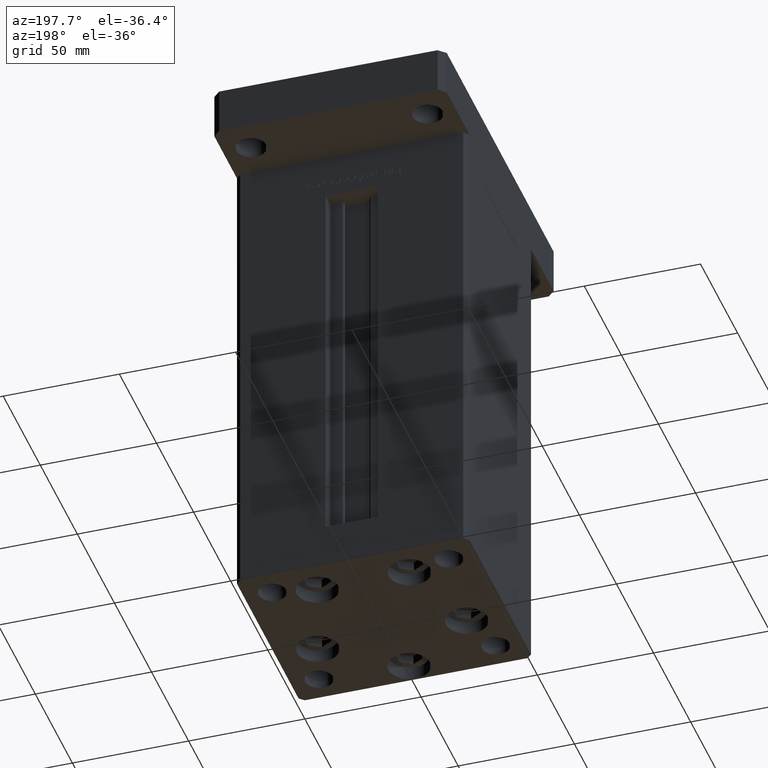
[diagram: clean part render]
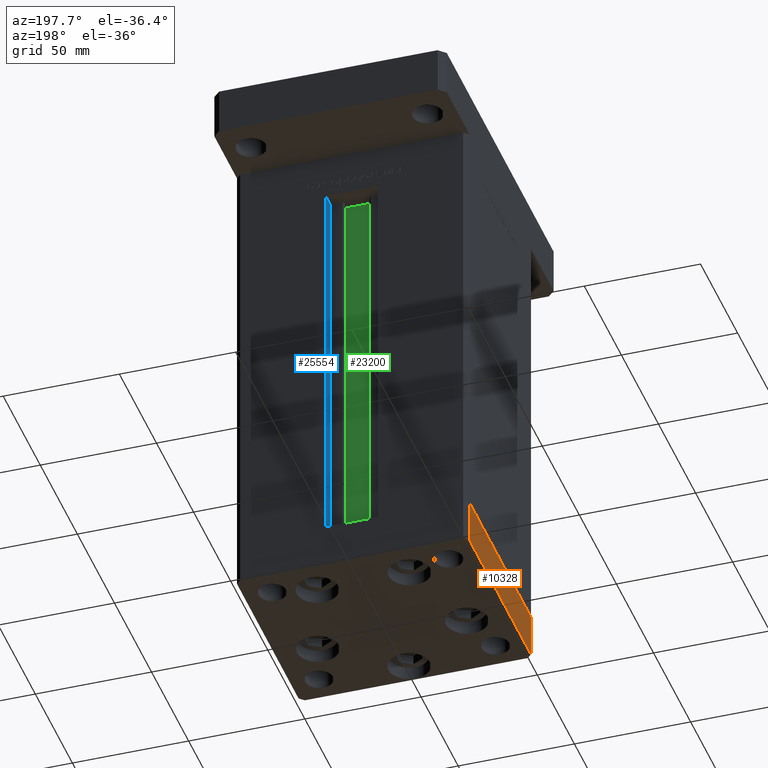
[diagram: same view with three faces highlighted in distinct colors, each labeled with its STEP entity id]
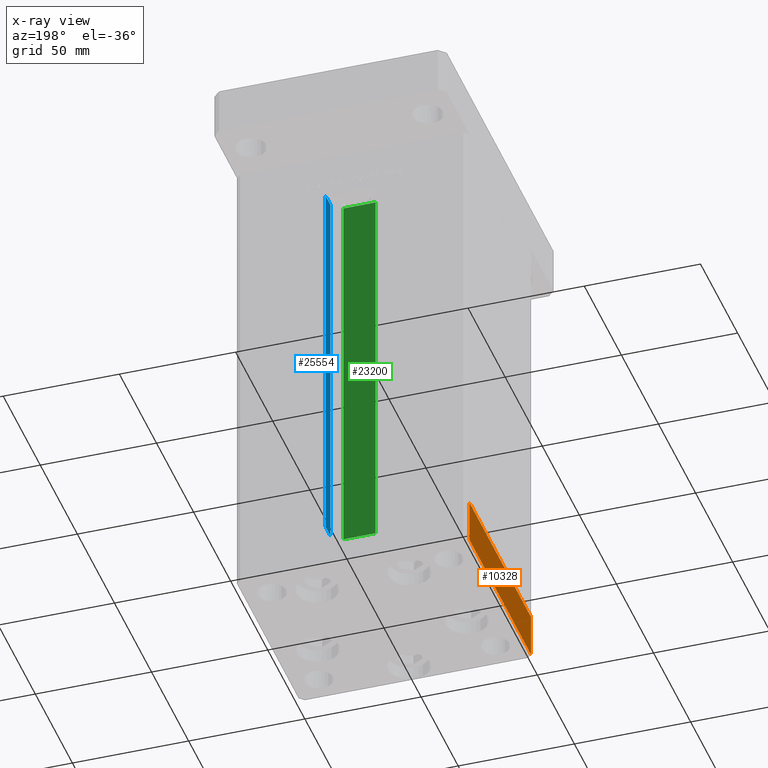
[diagram: x-ray of the same camera — body ghosted, the three highlighted faces saturated]
A machine part, auxiliary view with three faces highlighted in distinct colors.
The next image is the same camera in x-ray (body ghosted, the three faces saturated) — at least one of them is partly hidden behind the body in this view.
Their STEP definitions:

[orange] entity #10328 — the highlighted planar face has unit normal (-1, 0, 0).
#119 = CARTESIAN_POINT ( 'NONE',  ( 50.00000000000000000, -41.49999999999999289, -19.00000000000000000 ) ) ;
#218 = LINE ( 'NONE', #42746, #26651 ) ;
#459 = LINE ( 'NONE', #45190, #20736 ) ;
#4415 = EDGE_CURVE ( 'NONE', #19227, #9618, #50876, .T. ) ;
#6983 = AXIS2_PLACEMENT_3D ( 'NONE', #21808, #12274, #49621 ) ;
#8257 = VERTEX_POINT ( 'NONE', #10454 ) ;
#9618 = VERTEX_POINT ( 'NONE', #19326 ) ;
#10328 = ADVANCED_FACE ( 'NONE', ( #46067 ), #24822, .T. ) ;
#10425 = VECTOR ( 'NONE', #39532, 1000.000000000000000 ) ;
#10454 = CARTESIAN_POINT ( 'NONE',  ( 49.99999999999992184, 41.49999999999998579, -19.00000000000000000 ) ) ;
#10539 = ORIENTED_EDGE ( 'NONE', *, *, #50471, .T. ) ;
#12274 = DIRECTION ( 'NONE',  ( 1.000000000000000000, 1.003213576468515193E-15, -0.000000000000000000 ) ) ;
#13041 = DIRECTION ( 'NONE',  ( 0.000000000000000000, 0.000000000000000000, 1.000000000000000000 ) ) ;
#19227 = VERTEX_POINT ( 'NONE', #119 ) ;
#19326 = CARTESIAN_POINT ( 'NONE',  ( 50.00000000000000000, -41.49999999999999289, 0.000000000000000000 ) ) ;
#20736 = VECTOR ( 'NONE', #53647, 1000.000000000000000 ) ;
#21808 = CARTESIAN_POINT ( 'NONE',  ( 50.00000000000000000, -41.49999999999999289, -19.00000000000000000 ) ) ;
#22605 = ORIENTED_EDGE ( 'NONE', *, *, #37037, .T. ) ;
#22800 = DIRECTION ( 'NONE',  ( 0.000000000000000000, 0.000000000000000000, 1.000000000000000000 ) ) ;
#22933 = LINE ( 'NONE', #26998, #10425 ) ;
#24822 = PLANE ( 'NONE',  #6983 ) ;
#26195 = CARTESIAN_POINT ( 'NONE',  ( 49.99999999999992184, 41.49999999999998579, 0.000000000000000000 ) ) ;
#26651 = VECTOR ( 'NONE', #13041, 1000.000000000000000 ) ;
#26998 = CARTESIAN_POINT ( 'NONE',  ( 50.00000000000000000, -41.49999999999999289, -19.00000000000000000 ) ) ;
#34400 = ORIENTED_EDGE ( 'NONE', *, *, #46232, .F. ) ;
#37037 = EDGE_CURVE ( 'NONE', #8257, #43346, #218, .T. ) ;
#39532 = DIRECTION ( 'NONE',  ( -1.003213576468515193E-15, 1.000000000000000000, 0.000000000000000000 ) ) ;
#42746 = CARTESIAN_POINT ( 'NONE',  ( 49.99999999999992184, 41.49999999999998579, -19.00000000000000000 ) ) ;
#43346 = VERTEX_POINT ( 'NONE', #26195 ) ;
#45190 = CARTESIAN_POINT ( 'NONE',  ( 50.00000000000000000, -41.49999999999999289, 0.000000000000000000 ) ) ;
#45770 = ORIENTED_EDGE ( 'NONE', *, *, #4415, .F. ) ;
#46067 = FACE_OUTER_BOUND ( 'NONE', #46892, .T. ) ;
#46232 = EDGE_CURVE ( 'NONE', #9618, #43346, #459, .T. ) ;
#46892 = EDGE_LOOP ( 'NONE', ( #34400, #45770, #10539, #22605 ) ) ;
#49621 = DIRECTION ( 'NONE',  ( -1.003213576468515193E-15, 1.000000000000000000, 0.000000000000000000 ) ) ;
#50450 = VECTOR ( 'NONE', #22800, 1000.000000000000000 ) ;
#50471 = EDGE_CURVE ( 'NONE', #19227, #8257, #22933, .T. ) ;
#50876 = LINE ( 'NONE', #51138, #50450 ) ;
#51138 = CARTESIAN_POINT ( 'NONE',  ( 50.00000000000000000, -41.49999999999999289, -19.00000000000000000 ) ) ;
#53647 = DIRECTION ( 'NONE',  ( -1.003213576468515193E-15, 1.000000000000000000, 0.000000000000000000 ) ) ;

[blue] entity #25554 — the highlighted planar face has unit normal (1, 0, 0).
#4533 = EDGE_CURVE ( 'NONE', #39308, #18136, #15702, .T. ) ;
#6064 = DIRECTION ( 'NONE',  ( -0.000000000000000000, -1.000000000000000000, 0.000000000000000000 ) ) ;
#8175 = AXIS2_PLACEMENT_3D ( 'NONE', #14728, #35165, #18555 ) ;
#11924 = EDGE_CURVE ( 'NONE', #30798, #51657, #30537, .T. ) ;
#13964 = EDGE_CURVE ( 'NONE', #30798, #39308, #41784, .T. ) ;
#14193 = PLANE ( 'NONE',  #8175 ) ;
#14728 = CARTESIAN_POINT ( 'NONE',  ( 11.24999999999999822, 36.99999999999999289, 0.000000000000000000 ) ) ;
#15702 = LINE ( 'NONE', #31493, #17344 ) ;
#16820 = ORIENTED_EDGE ( 'NONE', *, *, #11924, .T. ) ;
#16988 = DIRECTION ( 'NONE',  ( 0.000000000000000000, 1.000000000000000000, 0.000000000000000000 ) ) ;
#17344 = VECTOR ( 'NONE', #44034, 1000.000000000000000 ) ;
#18136 = VERTEX_POINT ( 'NONE', #38204 ) ;
#18555 = DIRECTION ( 'NONE',  ( 0.000000000000000000, 0.000000000000000000, -1.000000000000000000 ) ) ;
#20581 = ORIENTED_EDGE ( 'NONE', *, *, #13964, .F. ) ;
#23120 = EDGE_LOOP ( 'NONE', ( #41557, #20581, #16820, #26120 ) ) ;
#25554 = ADVANCED_FACE ( 'NONE', ( #47709 ), #14193, .F. ) ;
#26120 = ORIENTED_EDGE ( 'NONE', *, *, #39128, .F. ) ;
#26762 = LINE ( 'NONE', #43399, #27618 ) ;
#27618 = VECTOR ( 'NONE', #6064, 1000.000000000000000 ) ;
#28214 = CARTESIAN_POINT ( 'NONE',  ( 11.24999999999999822, 36.99999999999999289, 0.000000000000000000 ) ) ;
#30537 = LINE ( 'NONE', #42540, #37470 ) ;
#30723 = CARTESIAN_POINT ( 'NONE',  ( 11.24999999999999822, 43.50000000000000000, 0.000000000000000000 ) ) ;
#30798 = VERTEX_POINT ( 'NONE', #28214 ) ;
#31493 = CARTESIAN_POINT ( 'NONE',  ( 11.24999999999999822, 43.50000000000000000, 0.000000000000000000 ) ) ;
#34352 = DIRECTION ( 'NONE',  ( -0.000000000000000000, -0.000000000000000000, 1.000000000000000000 ) ) ;
#35165 = DIRECTION ( 'NONE',  ( 1.000000000000000000, -0.000000000000000000, 0.000000000000000000 ) ) ;
#37470 = VECTOR ( 'NONE', #34352, 1000.000000000000000 ) ;
#38204 = CARTESIAN_POINT ( 'NONE',  ( 11.24999999999999112, 43.50000000000000000, 168.5000000000000000 ) ) ;
#39128 = EDGE_CURVE ( 'NONE', #18136, #51657, #26762, .T. ) ;
#39308 = VERTEX_POINT ( 'NONE', #30723 ) ;
#41557 = ORIENTED_EDGE ( 'NONE', *, *, #4533, .F. ) ;
#41784 = LINE ( 'NONE', #46412, #41923 ) ;
#41923 = VECTOR ( 'NONE', #16988, 1000.000000000000000 ) ;
#42540 = CARTESIAN_POINT ( 'NONE',  ( 11.24999999999999822, 36.99999999999999289, 0.000000000000000000 ) ) ;
#43399 = CARTESIAN_POINT ( 'NONE',  ( 11.24999999999999822, 0.000000000000000000, 168.5000000000000000 ) ) ;
#44034 = DIRECTION ( 'NONE',  ( -0.000000000000000000, -0.000000000000000000, 1.000000000000000000 ) ) ;
#46412 = CARTESIAN_POINT ( 'NONE',  ( 11.24999999999999822, 36.99999999999999289, 0.000000000000000000 ) ) ;
#47709 = FACE_OUTER_BOUND ( 'NONE', #23120, .T. ) ;
#51657 = VERTEX_POINT ( 'NONE', #52732 ) ;
#52732 = CARTESIAN_POINT ( 'NONE',  ( 11.24999999999999822, 36.99999999999999289, 168.5000000000000000 ) ) ;

[green] entity #23200 — the highlighted planar face has unit normal (0, -1, 0).
#143 = CARTESIAN_POINT ( 'NONE',  ( 6.876153656360465050, 32.99999999999986500, 0.000000000000000000 ) ) ;
#2910 = VECTOR ( 'NONE', #24120, 1000.000000000000000 ) ;
#4334 = VECTOR ( 'NONE', #21420, 1000.000000000000000 ) ;
#5999 = ORIENTED_EDGE ( 'NONE', *, *, #30395, .F. ) ;
#7747 = CARTESIAN_POINT ( 'NONE',  ( 0.000000000000000000, 32.99999999999986500, 168.5000000000000000 ) ) ;
#8991 = EDGE_LOOP ( 'NONE', ( #9177, #5999, #47615, #33389 ) ) ;
#9177 = ORIENTED_EDGE ( 'NONE', *, *, #51517, .F. ) ;
#14930 = CARTESIAN_POINT ( 'NONE',  ( 6.876153656360465050, 32.99999999999986500, 0.000000000000000000 ) ) ;
#14955 = LINE ( 'NONE', #52297, #28204 ) ;
#15686 = VERTEX_POINT ( 'NONE', #14930 ) ;
#16235 = VERTEX_POINT ( 'NONE', #19985 ) ;
#18240 = DIRECTION ( 'NONE',  ( 1.000000000000000000, -0.000000000000000000, -0.000000000000000000 ) ) ;
#19552 = CARTESIAN_POINT ( 'NONE',  ( -6.876153656360465050, 32.99999999999986500, 0.000000000000000000 ) ) ;
#19985 = CARTESIAN_POINT ( 'NONE',  ( -6.876153656360465050, 32.99999999999986500, 0.000000000000000000 ) ) ;
#21420 = DIRECTION ( 'NONE',  ( -0.000000000000000000, -0.000000000000000000, 1.000000000000000000 ) ) ;
#22353 = CARTESIAN_POINT ( 'NONE',  ( 6.876153656360465050, 32.99999999999986500, 0.000000000000000000 ) ) ;
#23200 = ADVANCED_FACE ( 'NONE', ( #47683 ), #38952, .F. ) ;
#24120 = DIRECTION ( 'NONE',  ( -1.000000000000000000, 0.000000000000000000, 0.000000000000000000 ) ) ;
#25082 = EDGE_CURVE ( 'NONE', #26854, #29471, #32011, .T. ) ;
#26854 = VERTEX_POINT ( 'NONE', #34648 ) ;
#28204 = VECTOR ( 'NONE', #18240, 1000.000000000000000 ) ;
#29300 = LINE ( 'NONE', #143, #4334 ) ;
#29317 = VECTOR ( 'NONE', #40256, 1000.000000000000000 ) ;
#29471 = VERTEX_POINT ( 'NONE', #41152 ) ;
#30395 = EDGE_CURVE ( 'NONE', #16235, #15686, #14955, .T. ) ;
#32011 = LINE ( 'NONE', #7747, #2910 ) ;
#33389 = ORIENTED_EDGE ( 'NONE', *, *, #25082, .F. ) ;
#34648 = CARTESIAN_POINT ( 'NONE',  ( 6.876153656360465050, 32.99999999999986500, 168.5000000000000000 ) ) ;
#38686 = DIRECTION ( 'NONE',  ( 0.000000000000000000, 0.000000000000000000, -1.000000000000000000 ) ) ;
#38952 = PLANE ( 'NONE',  #50750 ) ;
#39228 = DIRECTION ( 'NONE',  ( 0.000000000000000000, -1.000000000000000000, -0.000000000000000000 ) ) ;
#39354 = EDGE_CURVE ( 'NONE', #16235, #29471, #52535, .T. ) ;
#40256 = DIRECTION ( 'NONE',  ( -0.000000000000000000, -0.000000000000000000, 1.000000000000000000 ) ) ;
#41152 = CARTESIAN_POINT ( 'NONE',  ( -6.876153656360465050, 32.99999999999986500, 168.5000000000000000 ) ) ;
#47615 = ORIENTED_EDGE ( 'NONE', *, *, #39354, .T. ) ;
#47683 = FACE_OUTER_BOUND ( 'NONE', #8991, .T. ) ;
#50750 = AXIS2_PLACEMENT_3D ( 'NONE', #22353, #39228, #38686 ) ;
#51517 = EDGE_CURVE ( 'NONE', #15686, #26854, #29300, .T. ) ;
#52297 = CARTESIAN_POINT ( 'NONE',  ( 6.876153656360465050, 32.99999999999986500, 0.000000000000000000 ) ) ;
#52535 = LINE ( 'NONE', #19552, #29317 ) ;